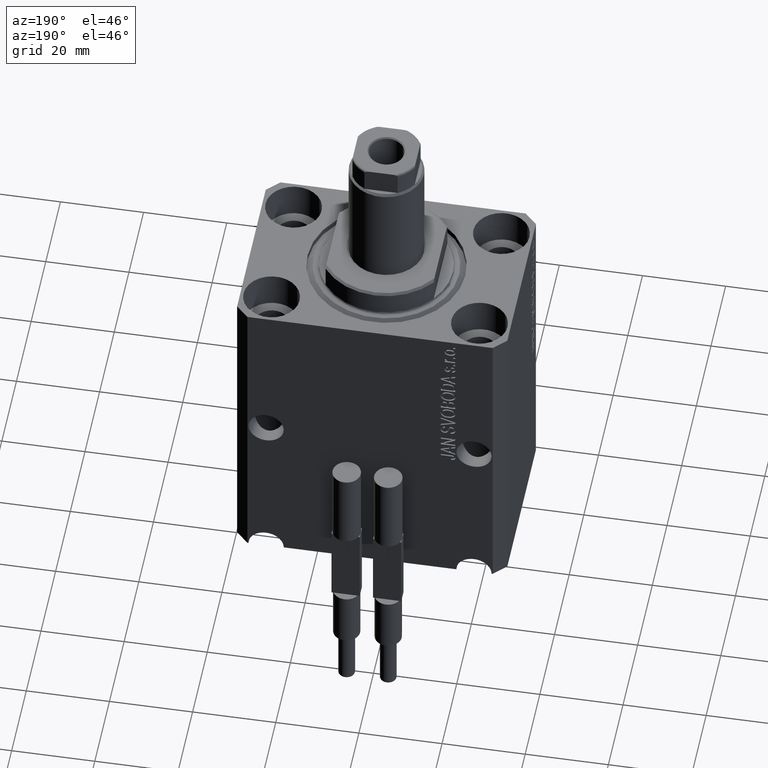
[diagram: clean part render]
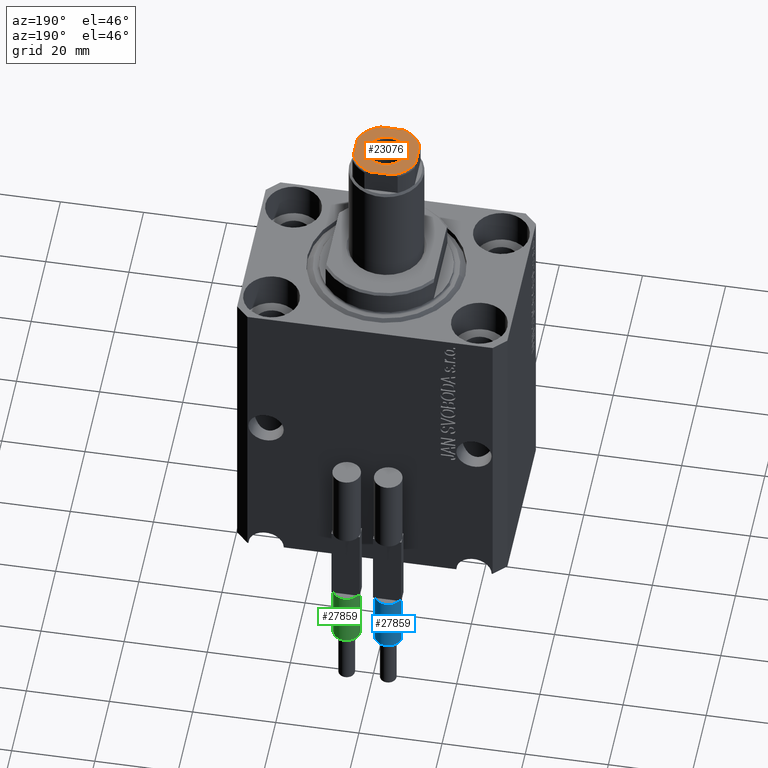
[diagram: same view with three faces highlighted in distinct colors, each labeled with its STEP entity id]
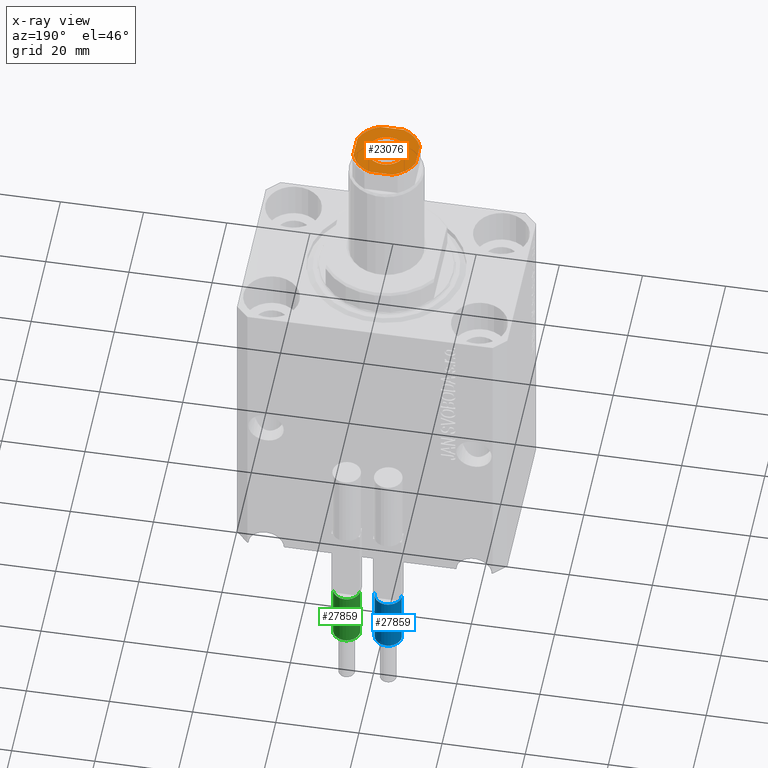
[diagram: x-ray of the same camera — body ghosted, the three highlighted faces saturated]
A machine part, auxiliary view with three faces highlighted in distinct colors.
The next image is the same camera in x-ray (body ghosted, the three faces saturated) — at least one of them is partly hidden behind the body in this view.
Their STEP definitions:

[orange] entity #23076 — the highlighted planar face has unit normal (0, 0, 1).
#876 = VECTOR ( 'NONE', #15609, 1000.000000000000000 ) ;
#939 = CARTESIAN_POINT ( 'NONE',  ( 0.000000000000000000, 0.000000000000000000, 84.00000000000000000 ) ) ;
#1380 = DIRECTION ( 'NONE',  ( 1.000000000000000000, 0.000000000000000000, 0.000000000000000000 ) ) ;
#1614 = LINE ( 'NONE', #5275, #876 ) ;
#1818 = VERTEX_POINT ( 'NONE', #33445 ) ;
#3357 = VERTEX_POINT ( 'NONE', #3623 ) ;
#3623 = CARTESIAN_POINT ( 'NONE',  ( -4.549999999999998934, 5.572142936120455355E-16, 84.00000000000000000 ) ) ;
#3630 = FACE_BOUND ( 'NONE', #23026, .T. ) ;
#3691 = DIRECTION ( 'NONE',  ( 1.000000000000000000, 0.000000000000000000, 0.000000000000000000 ) ) ;
#3855 = CARTESIAN_POINT ( 'NONE',  ( 0.000000000000000000, 0.000000000000000000, 84.00000000000000000 ) ) ;
#4002 = VERTEX_POINT ( 'NONE', #22934 ) ;
#4088 = DIRECTION ( 'NONE',  ( -0.000000000000000000, 0.000000000000000000, 1.000000000000000000 ) ) ;
#5238 = VECTOR ( 'NONE', #40123, 1000.000000000000000 ) ;
#5275 = CARTESIAN_POINT ( 'NONE',  ( -7.499999999999998224, 7.499999999999999112, 84.00000000000000000 ) ) ;
#6845 = EDGE_CURVE ( 'NONE', #31347, #27930, #9189, .T. ) ;
#7976 = CARTESIAN_POINT ( 'NONE',  ( -2.783882181415010315, -7.500000000000000888, 84.00000000000000000 ) ) ;
#8841 = CARTESIAN_POINT ( 'NONE',  ( 0.000000000000000000, 0.000000000000000000, 84.00000000000000000 ) ) ;
#8952 = CARTESIAN_POINT ( 'NONE',  ( -7.499999999999998224, 7.499999999999999112, 84.00000000000000000 ) ) ;
#9088 = EDGE_CURVE ( 'NONE', #4002, #3357, #19686, .T. ) ;
#9116 = CARTESIAN_POINT ( 'NONE',  ( 0.000000000000000000, 0.000000000000000000, 84.00000000000000000 ) ) ;
#9189 = LINE ( 'NONE', #12171, #5238 ) ;
#9923 = EDGE_CURVE ( 'NONE', #27930, #33389, #20070, .T. ) ;
#10110 = EDGE_LOOP ( 'NONE', ( #14343, #27321, #34291, #17829, #35534, #18105, #40487, #39580 ) ) ;
#12060 = CIRCLE ( 'NONE', #20129, 8.000000000000000000 ) ;
#12171 = CARTESIAN_POINT ( 'NONE',  ( -7.499999999999997335, -7.500000000000000888, 84.00000000000000000 ) ) ;
#12735 = DIRECTION ( 'NONE',  ( 1.000000000000000000, 0.000000000000000000, 0.000000000000000000 ) ) ;
#13828 = AXIS2_PLACEMENT_3D ( 'NONE', #939, #31442, #3691 ) ;
#14343 = ORIENTED_EDGE ( 'NONE', *, *, #23960, .T. ) ;
#14542 = VECTOR ( 'NONE', #29592, 1000.000000000000000 ) ;
#14751 = AXIS2_PLACEMENT_3D ( 'NONE', #21291, #4088, #17614 ) ;
#14858 = DIRECTION ( 'NONE',  ( -0.000000000000000000, 0.000000000000000000, 1.000000000000000000 ) ) ;
#15579 = ORIENTED_EDGE ( 'NONE', *, *, #9088, .T. ) ;
#15609 = DIRECTION ( 'NONE',  ( 5.782411586589357392E-17, -1.000000000000000000, 0.000000000000000000 ) ) ;
#15610 = LINE ( 'NONE', #8952, #14542 ) ;
#17614 = DIRECTION ( 'NONE',  ( 1.000000000000000000, 0.000000000000000000, 0.000000000000000000 ) ) ;
#17653 = AXIS2_PLACEMENT_3D ( 'NONE', #18982, #14858, #28614 ) ;
#17829 = ORIENTED_EDGE ( 'NONE', *, *, #9923, .T. ) ;
#18068 = VERTEX_POINT ( 'NONE', #21531 ) ;
#18105 = ORIENTED_EDGE ( 'NONE', *, *, #32244, .T. ) ;
#18771 = CARTESIAN_POINT ( 'NONE',  ( 7.500000000000001776, 7.500000000000000000, 84.00000000000000000 ) ) ;
#18944 = EDGE_CURVE ( 'NONE', #33389, #24093, #25419, .T. ) ;
#18982 = CARTESIAN_POINT ( 'NONE',  ( 0.000000000000000000, 0.000000000000000000, 84.00000000000000000 ) ) ;
#19686 = CIRCLE ( 'NONE', #32116, 4.549999999999998934 ) ;
#19760 = CARTESIAN_POINT ( 'NONE',  ( -2.783882181415013868, 7.499999999999999112, 84.00000000000000000 ) ) ;
#20070 = CIRCLE ( 'NONE', #23014, 8.000000000000000000 ) ;
#20129 = AXIS2_PLACEMENT_3D ( 'NONE', #8841, #44131, #12735 ) ;
#20314 = VERTEX_POINT ( 'NONE', #38685 ) ;
#21284 = DIRECTION ( 'NONE',  ( 0.000000000000000000, -0.000000000000000000, -1.000000000000000000 ) ) ;
#21291 = CARTESIAN_POINT ( 'NONE',  ( 0.000000000000000000, 0.000000000000000000, 84.00000000000000000 ) ) ;
#21531 = CARTESIAN_POINT ( 'NONE',  ( -7.499999999999998224, -2.783882181415016088, 84.00000000000000000 ) ) ;
#22260 = DIRECTION ( 'NONE',  ( -0.000000000000000000, 0.000000000000000000, 1.000000000000000000 ) ) ;
#22934 = CARTESIAN_POINT ( 'NONE',  ( 4.549999999999998934, 0.000000000000000000, 84.00000000000000000 ) ) ;
#23014 = AXIS2_PLACEMENT_3D ( 'NONE', #39665, #22260, #1380 ) ;
#23026 = EDGE_LOOP ( 'NONE', ( #15579, #29285 ) ) ;
#23076 = ADVANCED_FACE ( 'NONE', ( #3630, #34593 ), #38701, .T. ) ;
#23169 = EDGE_CURVE ( 'NONE', #18068, #31347, #40368, .T. ) ;
#23960 = EDGE_CURVE ( 'NONE', #1818, #18068, #1614, .T. ) ;
#24093 = VERTEX_POINT ( 'NONE', #32063 ) ;
#24723 = EDGE_CURVE ( 'NONE', #27083, #1818, #12060, .T. ) ;
#25419 = LINE ( 'NONE', #18771, #37562 ) ;
#27083 = VERTEX_POINT ( 'NONE', #19760 ) ;
#27321 = ORIENTED_EDGE ( 'NONE', *, *, #23169, .T. ) ;
#27930 = VERTEX_POINT ( 'NONE', #42686 ) ;
#28174 = CARTESIAN_POINT ( 'NONE',  ( 7.500000000000000888, -2.783882181415009427, 84.00000000000000000 ) ) ;
#28614 = DIRECTION ( 'NONE',  ( 1.000000000000000000, 0.000000000000000000, 0.000000000000000000 ) ) ;
#29285 = ORIENTED_EDGE ( 'NONE', *, *, #32910, .T. ) ;
#29592 = DIRECTION ( 'NONE',  ( -1.000000000000000000, -5.782411586589357392E-17, -0.000000000000000000 ) ) ;
#31347 = VERTEX_POINT ( 'NONE', #7976 ) ;
#31399 = CIRCLE ( 'NONE', #38724, 8.000000000000000000 ) ;
#31442 = DIRECTION ( 'NONE',  ( 0.000000000000000000, -0.000000000000000000, -1.000000000000000000 ) ) ;
#32063 = CARTESIAN_POINT ( 'NONE',  ( 7.500000000000000888, 2.783882181415007206, 84.00000000000000000 ) ) ;
#32116 = AXIS2_PLACEMENT_3D ( 'NONE', #3855, #21284, #38252 ) ;
#32244 = EDGE_CURVE ( 'NONE', #24093, #20314, #31399, .T. ) ;
#32910 = EDGE_CURVE ( 'NONE', #3357, #4002, #33594, .T. ) ;
#33118 = EDGE_CURVE ( 'NONE', #20314, #27083, #15610, .T. ) ;
#33389 = VERTEX_POINT ( 'NONE', #28174 ) ;
#33445 = CARTESIAN_POINT ( 'NONE',  ( -7.499999999999998224, 2.783882181415015644, 84.00000000000000000 ) ) ;
#33594 = CIRCLE ( 'NONE', #13828, 4.549999999999998934 ) ;
#34291 = ORIENTED_EDGE ( 'NONE', *, *, #6845, .T. ) ;
#34593 = FACE_OUTER_BOUND ( 'NONE', #10110, .T. ) ;
#35534 = ORIENTED_EDGE ( 'NONE', *, *, #18944, .T. ) ;
#37083 = DIRECTION ( 'NONE',  ( -0.000000000000000000, 0.000000000000000000, 1.000000000000000000 ) ) ;
#37562 = VECTOR ( 'NONE', #40301, 1000.000000000000000 ) ;
#38252 = DIRECTION ( 'NONE',  ( 1.000000000000000000, 0.000000000000000000, 0.000000000000000000 ) ) ;
#38685 = CARTESIAN_POINT ( 'NONE',  ( 2.783882181415012980, 7.500000000000000000, 84.00000000000000000 ) ) ;
#38701 = PLANE ( 'NONE',  #14751 ) ;
#38724 = AXIS2_PLACEMENT_3D ( 'NONE', #9116, #37083, #44174 ) ;
#39580 = ORIENTED_EDGE ( 'NONE', *, *, #24723, .T. ) ;
#39665 = CARTESIAN_POINT ( 'NONE',  ( 0.000000000000000000, 0.000000000000000000, 84.00000000000000000 ) ) ;
#40123 = DIRECTION ( 'NONE',  ( 1.000000000000000000, 5.782411586589358625E-17, 0.000000000000000000 ) ) ;
#40301 = DIRECTION ( 'NONE',  ( 1.156482317317871478E-16, 1.000000000000000000, -0.000000000000000000 ) ) ;
#40368 = CIRCLE ( 'NONE', #17653, 8.000000000000000000 ) ;
#40487 = ORIENTED_EDGE ( 'NONE', *, *, #33118, .T. ) ;
#42686 = CARTESIAN_POINT ( 'NONE',  ( 2.783882181415008539, -7.500000000000000888, 84.00000000000000000 ) ) ;
#44131 = DIRECTION ( 'NONE',  ( -0.000000000000000000, 0.000000000000000000, 1.000000000000000000 ) ) ;
#44174 = DIRECTION ( 'NONE',  ( 1.000000000000000000, 0.000000000000000000, 0.000000000000000000 ) ) ;

[blue] entity #27859 — the highlighted cylindrical surface (edge-blend (fillet) strip) has radius 3.25 mm, axis along (0, 0, 1).
#291 = VERTEX_POINT ( 'NONE', #43375 ) ;
#926 = EDGE_CURVE ( 'NONE', #42699, #14007, #34033, .T. ) ;
#1183 = DIRECTION ( 'NONE',  ( -0.000000000000000000, -0.000000000000000000, -1.000000000000000000 ) ) ;
#1546 = DIRECTION ( 'NONE',  ( 0.000000000000000000, 0.000000000000000000, 1.000000000000000000 ) ) ;
#1915 = AXIS2_PLACEMENT_3D ( 'NONE', #34637, #24542, #21331 ) ;
#2185 = DIRECTION ( 'NONE',  ( -0.000000000000000000, -0.000000000000000000, -1.000000000000000000 ) ) ;
#3747 = ORIENTED_EDGE ( 'NONE', *, *, #36327, .T. ) ;
#4067 = VERTEX_POINT ( 'NONE', #41923 ) ;
#4500 = DIRECTION ( 'NONE',  ( 1.000000000000000000, 0.000000000000000000, 0.000000000000000000 ) ) ;
#4533 = DIRECTION ( 'NONE',  ( 1.000000000000000000, 0.000000000000000000, 0.000000000000000000 ) ) ;
#6993 = AXIS2_PLACEMENT_3D ( 'NONE', #22058, #1183, #12185 ) ;
#7533 = CARTESIAN_POINT ( 'NONE',  ( -2.883140648667699146, 1.500000000000000000, 40.00000000000000000 ) ) ;
#7863 = DIRECTION ( 'NONE',  ( 1.000000000000000000, 0.000000000000000000, 0.000000000000000000 ) ) ;
#7949 = CARTESIAN_POINT ( 'NONE',  ( 0.000000000000000000, 0.000000000000000000, 53.99999999999998579 ) ) ;
#8402 = AXIS2_PLACEMENT_3D ( 'NONE', #7949, #33148, #4500 ) ;
#8605 = CARTESIAN_POINT ( 'NONE',  ( -3.250000000000000444, 0.000000000000000000, 40.00000000000000000 ) ) ;
#9286 = LINE ( 'NONE', #37257, #29890 ) ;
#9643 = EDGE_CURVE ( 'NONE', #4067, #291, #42761, .T. ) ;
#10068 = CARTESIAN_POINT ( 'NONE',  ( 3.250000000000000444, 3.980102097228898231E-16, 56.00000000000000000 ) ) ;
#10453 = ORIENTED_EDGE ( 'NONE', *, *, #926, .T. ) ;
#12185 = DIRECTION ( 'NONE',  ( -1.000000000000000000, 0.000000000000000000, 0.000000000000000000 ) ) ;
#12912 = ORIENTED_EDGE ( 'NONE', *, *, #32132, .T. ) ;
#13824 = VECTOR ( 'NONE', #24052, 1000.000000000000000 ) ;
#14007 = VERTEX_POINT ( 'NONE', #19438 ) ;
#15831 = CIRCLE ( 'NONE', #1915, 3.250000000000000444 ) ;
#17058 = EDGE_LOOP ( 'NONE', ( #10453, #3747, #22991, #39988, #12912, #29574 ) ) ;
#17138 = AXIS2_PLACEMENT_3D ( 'NONE', #26424, #39497, #7863 ) ;
#17491 = CIRCLE ( 'NONE', #18215, 3.250000000000000444 ) ;
#18018 = VERTEX_POINT ( 'NONE', #7533 ) ;
#18215 = AXIS2_PLACEMENT_3D ( 'NONE', #21974, #1546, #4533 ) ;
#19438 = CARTESIAN_POINT ( 'NONE',  ( 3.250000000000000444, 3.980102097228898231E-16, 53.99999999999998579 ) ) ;
#21331 = DIRECTION ( 'NONE',  ( 1.000000000000000000, 0.000000000000000000, 0.000000000000000000 ) ) ;
#21974 = CARTESIAN_POINT ( 'NONE',  ( 0.000000000000000000, 0.000000000000000000, 40.00000000000000000 ) ) ;
#22058 = CARTESIAN_POINT ( 'NONE',  ( 0.000000000000000000, 0.000000000000000000, 56.00000000000000000 ) ) ;
#22991 = ORIENTED_EDGE ( 'NONE', *, *, #9643, .T. ) ;
#24052 = DIRECTION ( 'NONE',  ( -0.000000000000000000, -0.000000000000000000, -1.000000000000000000 ) ) ;
#24542 = DIRECTION ( 'NONE',  ( 0.000000000000000000, 0.000000000000000000, 1.000000000000000000 ) ) ;
#25482 = FACE_OUTER_BOUND ( 'NONE', #17058, .T. ) ;
#26424 = CARTESIAN_POINT ( 'NONE',  ( 0.000000000000000000, 0.000000000000000000, 40.00000000000000000 ) ) ;
#27859 = ADVANCED_FACE ( 'NONE', ( #25482 ), #36710, .T. ) ;
#28966 = EDGE_CURVE ( 'NONE', #291, #18018, #15831, .T. ) ;
#29574 = ORIENTED_EDGE ( 'NONE', *, *, #38607, .F. ) ;
#29890 = VECTOR ( 'NONE', #2185, 1000.000000000000000 ) ;
#32132 = EDGE_CURVE ( 'NONE', #18018, #32501, #17491, .T. ) ;
#32501 = VERTEX_POINT ( 'NONE', #8605 ) ;
#33148 = DIRECTION ( 'NONE',  ( 0.000000000000000000, 0.000000000000000000, -1.000000000000000000 ) ) ;
#34033 = CIRCLE ( 'NONE', #8402, 3.250000000000000444 ) ;
#34637 = CARTESIAN_POINT ( 'NONE',  ( 0.000000000000000000, 0.000000000000000000, 40.00000000000000000 ) ) ;
#36327 = EDGE_CURVE ( 'NONE', #14007, #4067, #38703, .T. ) ;
#36710 = CYLINDRICAL_SURFACE ( 'NONE', #6993, 3.250000000000000444 ) ;
#37257 = CARTESIAN_POINT ( 'NONE',  ( -3.250000000000000444, 0.000000000000000000, 56.00000000000000000 ) ) ;
#37737 = CARTESIAN_POINT ( 'NONE',  ( -3.250000000000000444, 0.000000000000000000, 53.99999999999998579 ) ) ;
#38607 = EDGE_CURVE ( 'NONE', #42699, #32501, #9286, .T. ) ;
#38703 = LINE ( 'NONE', #10068, #13824 ) ;
#39497 = DIRECTION ( 'NONE',  ( 0.000000000000000000, 0.000000000000000000, 1.000000000000000000 ) ) ;
#39988 = ORIENTED_EDGE ( 'NONE', *, *, #28966, .T. ) ;
#41923 = CARTESIAN_POINT ( 'NONE',  ( 3.250000000000000444, 3.980102097228898231E-16, 40.00000000000000000 ) ) ;
#42699 = VERTEX_POINT ( 'NONE', #37737 ) ;
#42761 = CIRCLE ( 'NONE', #17138, 3.250000000000000444 ) ;
#43375 = CARTESIAN_POINT ( 'NONE',  ( 2.883140648667699146, 1.500000000000000000, 40.00000000000000000 ) ) ;

[green] entity #27859 — the highlighted cylindrical surface (edge-blend (fillet) strip) has radius 3.25 mm, axis along (0, 0, 1).
#291 = VERTEX_POINT ( 'NONE', #43375 ) ;
#926 = EDGE_CURVE ( 'NONE', #42699, #14007, #34033, .T. ) ;
#1183 = DIRECTION ( 'NONE',  ( -0.000000000000000000, -0.000000000000000000, -1.000000000000000000 ) ) ;
#1546 = DIRECTION ( 'NONE',  ( 0.000000000000000000, 0.000000000000000000, 1.000000000000000000 ) ) ;
#1915 = AXIS2_PLACEMENT_3D ( 'NONE', #34637, #24542, #21331 ) ;
#2185 = DIRECTION ( 'NONE',  ( -0.000000000000000000, -0.000000000000000000, -1.000000000000000000 ) ) ;
#3747 = ORIENTED_EDGE ( 'NONE', *, *, #36327, .T. ) ;
#4067 = VERTEX_POINT ( 'NONE', #41923 ) ;
#4500 = DIRECTION ( 'NONE',  ( 1.000000000000000000, 0.000000000000000000, 0.000000000000000000 ) ) ;
#4533 = DIRECTION ( 'NONE',  ( 1.000000000000000000, 0.000000000000000000, 0.000000000000000000 ) ) ;
#6993 = AXIS2_PLACEMENT_3D ( 'NONE', #22058, #1183, #12185 ) ;
#7533 = CARTESIAN_POINT ( 'NONE',  ( -2.883140648667699146, 1.500000000000000000, 40.00000000000000000 ) ) ;
#7863 = DIRECTION ( 'NONE',  ( 1.000000000000000000, 0.000000000000000000, 0.000000000000000000 ) ) ;
#7949 = CARTESIAN_POINT ( 'NONE',  ( 0.000000000000000000, 0.000000000000000000, 53.99999999999998579 ) ) ;
#8402 = AXIS2_PLACEMENT_3D ( 'NONE', #7949, #33148, #4500 ) ;
#8605 = CARTESIAN_POINT ( 'NONE',  ( -3.250000000000000444, 0.000000000000000000, 40.00000000000000000 ) ) ;
#9286 = LINE ( 'NONE', #37257, #29890 ) ;
#9643 = EDGE_CURVE ( 'NONE', #4067, #291, #42761, .T. ) ;
#10068 = CARTESIAN_POINT ( 'NONE',  ( 3.250000000000000444, 3.980102097228898231E-16, 56.00000000000000000 ) ) ;
#10453 = ORIENTED_EDGE ( 'NONE', *, *, #926, .T. ) ;
#12185 = DIRECTION ( 'NONE',  ( -1.000000000000000000, 0.000000000000000000, 0.000000000000000000 ) ) ;
#12912 = ORIENTED_EDGE ( 'NONE', *, *, #32132, .T. ) ;
#13824 = VECTOR ( 'NONE', #24052, 1000.000000000000000 ) ;
#14007 = VERTEX_POINT ( 'NONE', #19438 ) ;
#15831 = CIRCLE ( 'NONE', #1915, 3.250000000000000444 ) ;
#17058 = EDGE_LOOP ( 'NONE', ( #10453, #3747, #22991, #39988, #12912, #29574 ) ) ;
#17138 = AXIS2_PLACEMENT_3D ( 'NONE', #26424, #39497, #7863 ) ;
#17491 = CIRCLE ( 'NONE', #18215, 3.250000000000000444 ) ;
#18018 = VERTEX_POINT ( 'NONE', #7533 ) ;
#18215 = AXIS2_PLACEMENT_3D ( 'NONE', #21974, #1546, #4533 ) ;
#19438 = CARTESIAN_POINT ( 'NONE',  ( 3.250000000000000444, 3.980102097228898231E-16, 53.99999999999998579 ) ) ;
#21331 = DIRECTION ( 'NONE',  ( 1.000000000000000000, 0.000000000000000000, 0.000000000000000000 ) ) ;
#21974 = CARTESIAN_POINT ( 'NONE',  ( 0.000000000000000000, 0.000000000000000000, 40.00000000000000000 ) ) ;
#22058 = CARTESIAN_POINT ( 'NONE',  ( 0.000000000000000000, 0.000000000000000000, 56.00000000000000000 ) ) ;
#22991 = ORIENTED_EDGE ( 'NONE', *, *, #9643, .T. ) ;
#24052 = DIRECTION ( 'NONE',  ( -0.000000000000000000, -0.000000000000000000, -1.000000000000000000 ) ) ;
#24542 = DIRECTION ( 'NONE',  ( 0.000000000000000000, 0.000000000000000000, 1.000000000000000000 ) ) ;
#25482 = FACE_OUTER_BOUND ( 'NONE', #17058, .T. ) ;
#26424 = CARTESIAN_POINT ( 'NONE',  ( 0.000000000000000000, 0.000000000000000000, 40.00000000000000000 ) ) ;
#27859 = ADVANCED_FACE ( 'NONE', ( #25482 ), #36710, .T. ) ;
#28966 = EDGE_CURVE ( 'NONE', #291, #18018, #15831, .T. ) ;
#29574 = ORIENTED_EDGE ( 'NONE', *, *, #38607, .F. ) ;
#29890 = VECTOR ( 'NONE', #2185, 1000.000000000000000 ) ;
#32132 = EDGE_CURVE ( 'NONE', #18018, #32501, #17491, .T. ) ;
#32501 = VERTEX_POINT ( 'NONE', #8605 ) ;
#33148 = DIRECTION ( 'NONE',  ( 0.000000000000000000, 0.000000000000000000, -1.000000000000000000 ) ) ;
#34033 = CIRCLE ( 'NONE', #8402, 3.250000000000000444 ) ;
#34637 = CARTESIAN_POINT ( 'NONE',  ( 0.000000000000000000, 0.000000000000000000, 40.00000000000000000 ) ) ;
#36327 = EDGE_CURVE ( 'NONE', #14007, #4067, #38703, .T. ) ;
#36710 = CYLINDRICAL_SURFACE ( 'NONE', #6993, 3.250000000000000444 ) ;
#37257 = CARTESIAN_POINT ( 'NONE',  ( -3.250000000000000444, 0.000000000000000000, 56.00000000000000000 ) ) ;
#37737 = CARTESIAN_POINT ( 'NONE',  ( -3.250000000000000444, 0.000000000000000000, 53.99999999999998579 ) ) ;
#38607 = EDGE_CURVE ( 'NONE', #42699, #32501, #9286, .T. ) ;
#38703 = LINE ( 'NONE', #10068, #13824 ) ;
#39497 = DIRECTION ( 'NONE',  ( 0.000000000000000000, 0.000000000000000000, 1.000000000000000000 ) ) ;
#39988 = ORIENTED_EDGE ( 'NONE', *, *, #28966, .T. ) ;
#41923 = CARTESIAN_POINT ( 'NONE',  ( 3.250000000000000444, 3.980102097228898231E-16, 40.00000000000000000 ) ) ;
#42699 = VERTEX_POINT ( 'NONE', #37737 ) ;
#42761 = CIRCLE ( 'NONE', #17138, 3.250000000000000444 ) ;
#43375 = CARTESIAN_POINT ( 'NONE',  ( 2.883140648667699146, 1.500000000000000000, 40.00000000000000000 ) ) ;